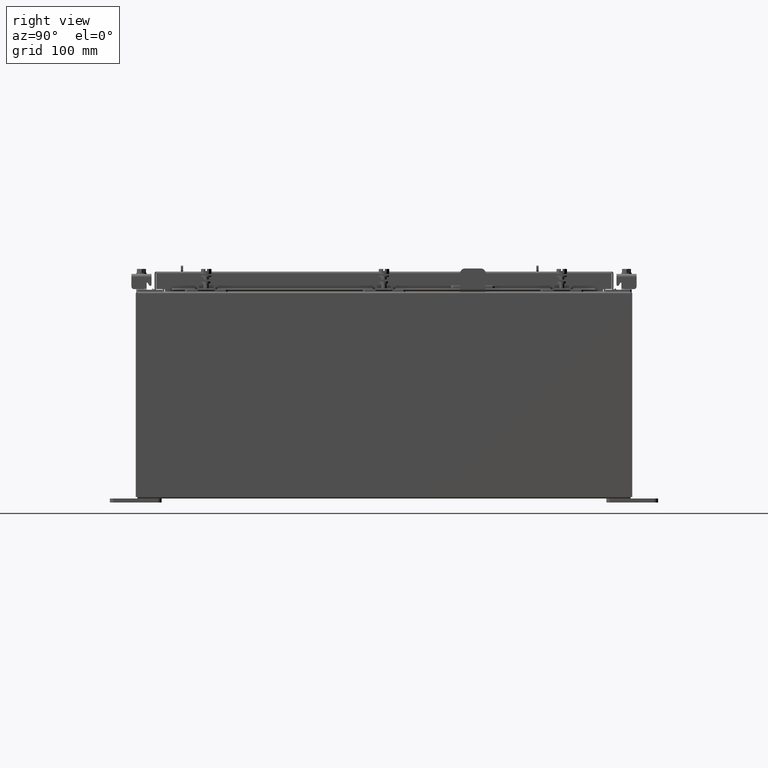
[diagram: clean part render]
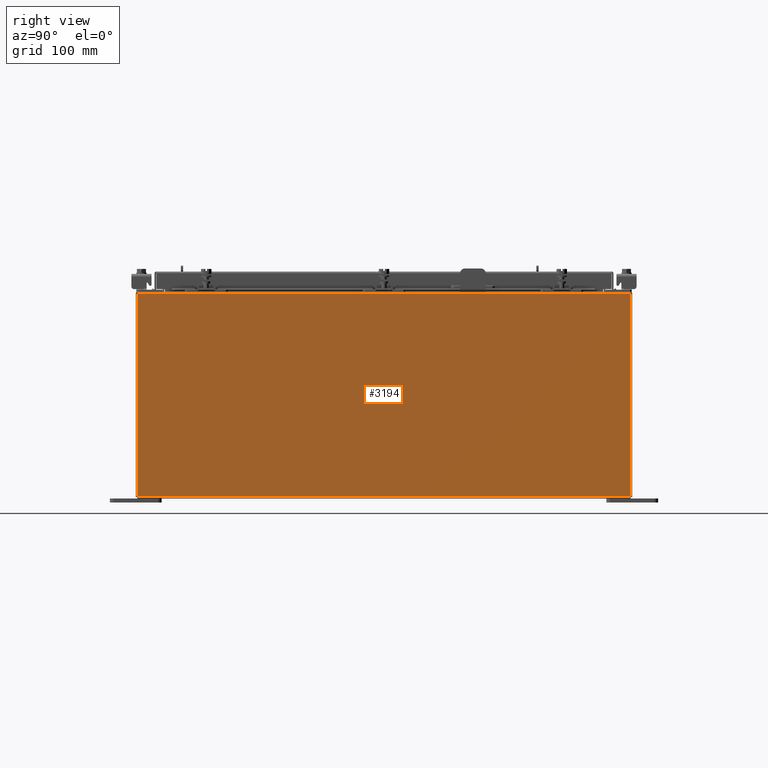
[diagram: same view with one face highlighted and labeled with its STEP entity id]
A machine part, right view. The second image highlights one B-rep face of the part: STEP entity #3194.
In plain terms, the highlighted planar face has unit normal (-1, 0, 0).
Its self-contained STEP definition (entity closure, byte-faithful):
#168 = DIRECTION ( 'NONE',  ( 3.523082860860888200E-015, -2.201926788038055100E-016, 1.000000000000000000 ) ) ;
#185 = ORIENTED_EDGE ( 'NONE', *, *, #593, .F. ) ;
#236 = EDGE_CURVE ( 'NONE', #14071, #17474, #18562, .T. ) ;
#593 = EDGE_CURVE ( 'NONE', #11973, #17474, #14198, .T. ) ;
#1099 = VECTOR ( 'NONE', #17802, 39.37007874015748100 ) ;
#1519 = VERTEX_POINT ( 'NONE', #10233 ) ;
#2984 = DIRECTION ( 'NONE',  ( -1.000000000000000000, 0.0000000000000000000, 3.523082860860887800E-015 ) ) ;
#3194 = ADVANCED_FACE ( 'NONE', ( #21858 ), #13431, .F. ) ;
#3885 = ORIENTED_EDGE ( 'NONE', *, *, #7183, .T. ) ;
#5373 = CARTESIAN_POINT ( 'NONE',  ( 10.00000000000000000, 11.92530000000000000, -3.286577851208143900E-014 ) ) ;
#5812 = LINE ( 'NONE', #12953, #19185 ) ;
#7183 = EDGE_CURVE ( 'NONE', #11973, #1519, #17723, .T. ) ;
#9032 = VECTOR ( 'NONE', #12903, 39.37007874015748100 ) ;
#10053 = CARTESIAN_POINT ( 'NONE',  ( 10.00000000000000000, -11.92530000000000000, 0.01299999999999984300 ) ) ;
#10233 = CARTESIAN_POINT ( 'NONE',  ( 10.00000000000003600, 11.92529999999999800, 9.837599999999994800 ) ) ;
#11216 = CARTESIAN_POINT ( 'NONE',  ( 10.00000000000000000, -11.92530000000000000, 0.01299999999999984700 ) ) ;
#11973 = VERTEX_POINT ( 'NONE', #17323 ) ;
#12623 = CARTESIAN_POINT ( 'NONE',  ( 10.00000000000003600, -11.92530000000000000, 9.837600000000001900 ) ) ;
#12648 = EDGE_LOOP ( 'NONE', ( #13324, #19926, #185, #3885 ) ) ;
#12903 = DIRECTION ( 'NONE',  ( -0.0000000000000000000, -1.000000000000000000, -0.0000000000000000000 ) ) ;
#12953 = CARTESIAN_POINT ( 'NONE',  ( 10.00000000000003600, 11.92530000000000000, 9.837599999999994800 ) ) ;
#13057 = VECTOR ( 'NONE', #168, 39.37007874015748100 ) ;
#13324 = ORIENTED_EDGE ( 'NONE', *, *, #13510, .T. ) ;
#13431 = PLANE ( 'NONE',  #20183 ) ;
#13510 = EDGE_CURVE ( 'NONE', #1519, #14071, #5812, .T. ) ;
#14071 = VERTEX_POINT ( 'NONE', #12623 ) ;
#14198 = LINE ( 'NONE', #11216, #9032 ) ;
#14596 = CARTESIAN_POINT ( 'NONE',  ( 10.00000000000000000, -11.92530000000000000, -3.549164226462045900E-014 ) ) ;
#15207 = DIRECTION ( 'NONE',  ( 3.523082860860887800E-015, 0.0000000000000000000, 1.000000000000000000 ) ) ;
#16484 = DIRECTION ( 'NONE',  ( -0.0000000000000000000, -1.000000000000000000, -0.0000000000000000000 ) ) ;
#17323 = CARTESIAN_POINT ( 'NONE',  ( 10.00000000000000000, 11.92529999999999800, 0.01299999999999984700 ) ) ;
#17474 = VERTEX_POINT ( 'NONE', #10053 ) ;
#17723 = LINE ( 'NONE', #5373, #13057 ) ;
#17802 = DIRECTION ( 'NONE',  ( -3.523082860860888200E-015, 0.0000000000000000000, -1.000000000000000000 ) ) ;
#18562 = LINE ( 'NONE', #14596, #1099 ) ;
#19185 = VECTOR ( 'NONE', #16484, 39.37007874015748100 ) ;
#19926 = ORIENTED_EDGE ( 'NONE', *, *, #236, .T. ) ;
#20183 = AXIS2_PLACEMENT_3D ( 'NONE', #20382, #2984, #15207 ) ;
#20382 = CARTESIAN_POINT ( 'NONE',  ( 10.00000000000000000, 0.0000000000000000000, -3.549164226462045900E-014 ) ) ;
#21858 = FACE_OUTER_BOUND ( 'NONE', #12648, .T. ) ;